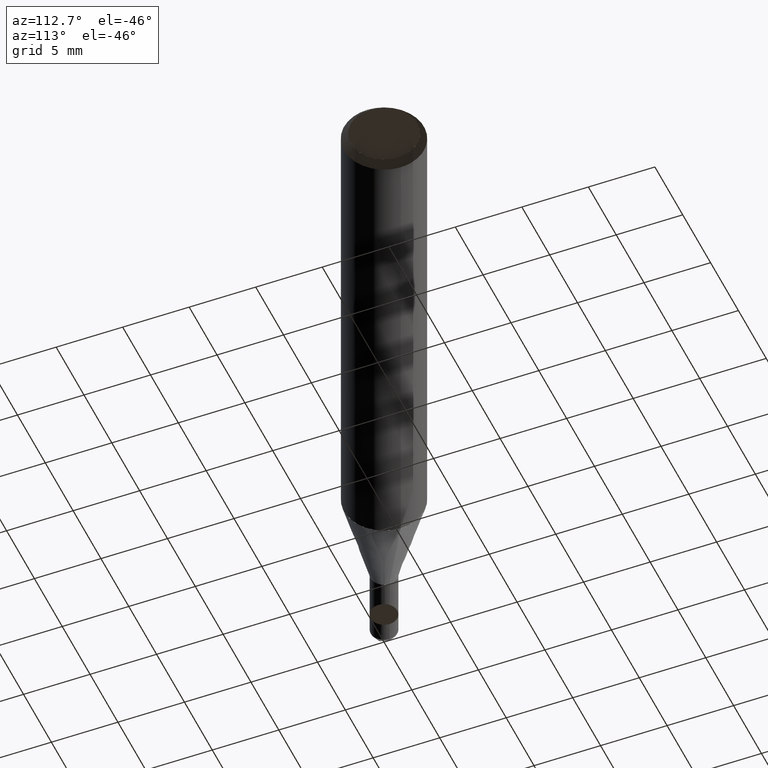
[diagram: clean part render]
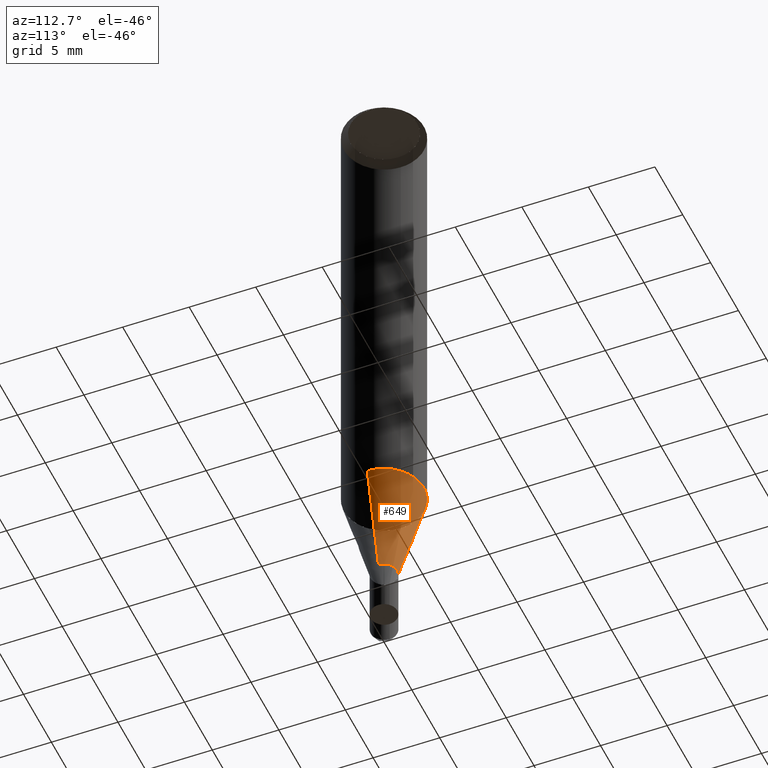
[diagram: same view with one face highlighted and labeled with its STEP entity id]
A machine part, auxiliary view. The second image highlights one B-rep face of the part: STEP entity #649.
In plain terms, the highlighted face is a freeform B-spline surface patch.
Its self-contained STEP definition (entity closure, byte-faithful):
#406=CARTESIAN_POINT('',(1.0,0.0,-7.464101615138));
#407=CARTESIAN_POINT('',(1.0,1.0,-7.464101615138));
#408=CARTESIAN_POINT('',(0.0,1.0,-7.464101615138));
#409=CARTESIAN_POINT('',(-1.0,1.0,-7.464101615138));
#410=CARTESIAN_POINT('',(-1.0,0.0,-7.464101615138));
#411=CARTESIAN_POINT('',(3.0,0.0,0.0));
#412=CARTESIAN_POINT('',(3.0,3.0,0.0));
#413=CARTESIAN_POINT('',(0.0,3.0,0.0));
#414=CARTESIAN_POINT('',(-3.0,3.0,0.0));
#415=CARTESIAN_POINT('',(-3.0,0.0,0.0));
#630=(
BOUNDED_SURFACE()
B_SPLINE_SURFACE(1,2,(
(#406,#407,#408,#409,#410),
(#411,#412,#413,#414,#415)
), .UNSPECIFIED.,.F.,.F.,.F.)
B_SPLINE_SURFACE_WITH_KNOTS((2,2),(3,2,3),(
0.0,1.0),(
0.0,0.5,1.0), .UNSPECIFIED.)
GEOMETRIC_REPRESENTATION_ITEM()
RATIONAL_B_SPLINE_SURFACE(((1.0,0.707106781187,1.0,0.707106781187,1.0),
(1.0,0.707106781187,1.0,0.707106781187,1.0)
))
REPRESENTATION_ITEM('')
SURFACE()
);
#631=(
BOUNDED_CURVE()
B_SPLINE_CURVE(2,(#411,#412,#413,#414,#415),.UNSPECIFIED.,.F.,.F.)
B_SPLINE_CURVE_WITH_KNOTS((3,2,3),
(0.0,0.5,1.0),.UNSPECIFIED.)
CURVE()
GEOMETRIC_REPRESENTATION_ITEM()
RATIONAL_B_SPLINE_CURVE((1.0,0.707106781187,1.0,0.707106781187,1.0))
REPRESENTATION_ITEM('')
);
#632=(
BOUNDED_CURVE()
B_SPLINE_CURVE(1,(#415,#410),.UNSPECIFIED.,.F.,.F.)
B_SPLINE_CURVE_WITH_KNOTS((2,2),
(0.0,1.0),.UNSPECIFIED.)
CURVE()
GEOMETRIC_REPRESENTATION_ITEM()
RATIONAL_B_SPLINE_CURVE((1.0,1.0))
REPRESENTATION_ITEM('')
);
#633=(
BOUNDED_CURVE()
B_SPLINE_CURVE(2,(#410,#409,#408,#407,#406),.UNSPECIFIED.,.F.,.F.)
B_SPLINE_CURVE_WITH_KNOTS((3,2,3),
(0.0,0.5,1.0),.UNSPECIFIED.)
CURVE()
GEOMETRIC_REPRESENTATION_ITEM()
RATIONAL_B_SPLINE_CURVE((1.0,0.707106781187,1.0,0.707106781187,1.0))
REPRESENTATION_ITEM('')
);
#634=(
BOUNDED_CURVE()
B_SPLINE_CURVE(1,(#406,#411),.UNSPECIFIED.,.F.,.F.)
B_SPLINE_CURVE_WITH_KNOTS((2,2),
(0.0,1.0),.UNSPECIFIED.)
CURVE()
GEOMETRIC_REPRESENTATION_ITEM()
RATIONAL_B_SPLINE_CURVE((1.0,1.0))
REPRESENTATION_ITEM('')
);
#635=VERTEX_POINT('',#406);
#636=VERTEX_POINT('',#410);
#637=VERTEX_POINT('',#411);
#638=VERTEX_POINT('',#415);
#639=EDGE_CURVE('',#637,#638,#631,.T.);
#640=EDGE_CURVE('',#638,#636,#632,.T.);
#641=EDGE_CURVE('',#636,#635,#633,.T.);
#642=EDGE_CURVE('',#635,#637,#634,.T.);
#643=ORIENTED_EDGE('',*,*,#639,.T.);
#644=ORIENTED_EDGE('',*,*,#640,.T.);
#645=ORIENTED_EDGE('',*,*,#641,.T.);
#646=ORIENTED_EDGE('',*,*,#642,.T.);
#647=EDGE_LOOP('',(#643,#644,#645,#646));
#648=FACE_OUTER_BOUND('',#647,.T.);
#649=ADVANCED_FACE('',(#648),#630,.T.);